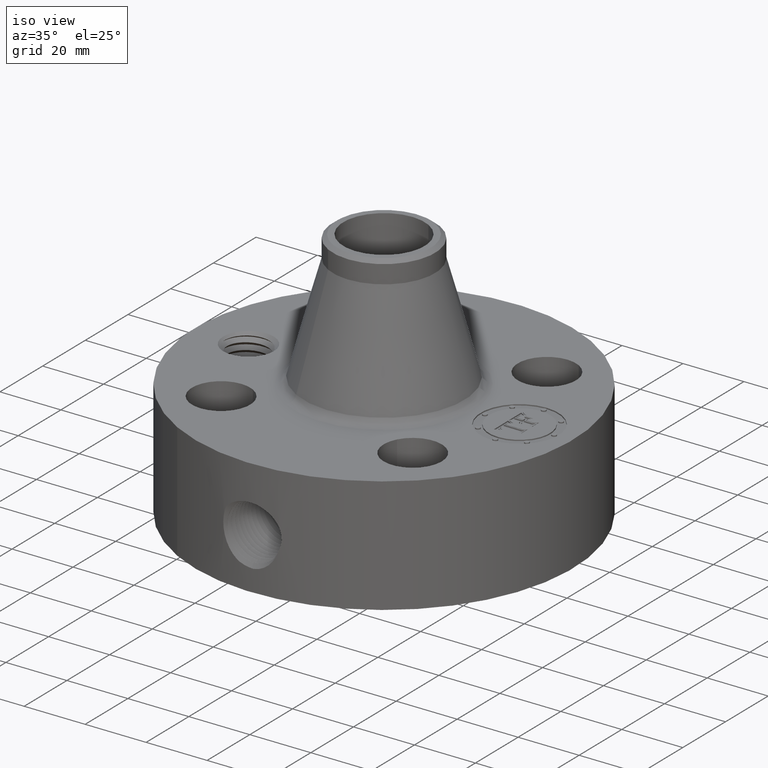
[diagram: clean part render]
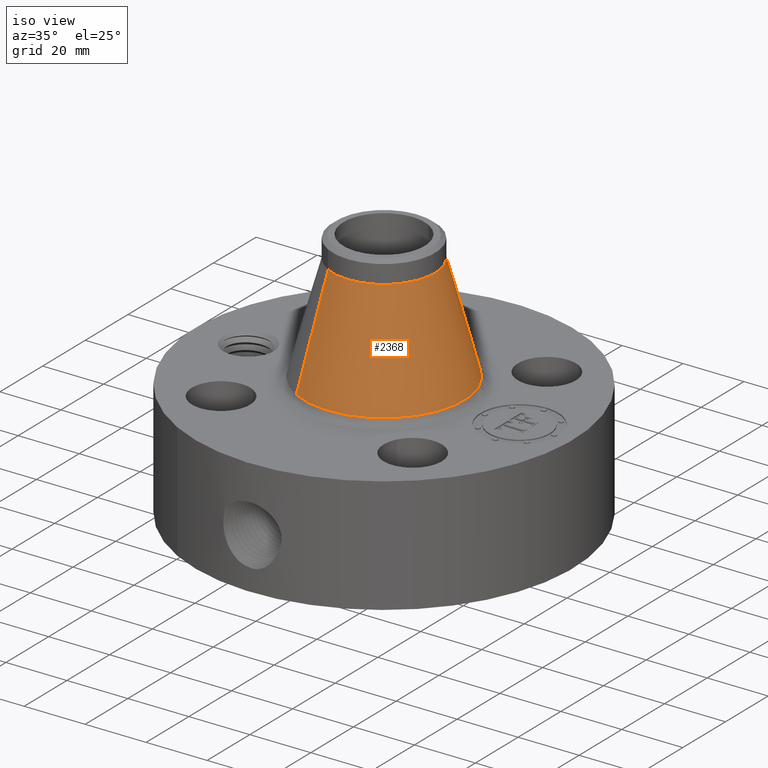
[diagram: same view with one face highlighted and labeled with its STEP entity id]
A machine part, iso view. The second image highlights one B-rep face of the part: STEP entity #2368.
In plain terms, the highlighted conical surface has half-angle 15.22 deg.
Its self-contained STEP definition (entity closure, byte-faithful):
#1765=AXIS2_PLACEMENT_3D('Circle Axis2P3D',#1763,#1764,$) ;
#2341=AXIS2_PLACEMENT_3D('Cone Axis2P3D',#2338,#2339,#2340) ;
#2352=AXIS2_PLACEMENT_3D('Circle Axis2P3D',#2350,#2351,$) ;
#1760=CARTESIAN_POINT('Vertex',(0.496647878182,0.909107843027,1.83849707969)) ;
#1763=CARTESIAN_POINT('Axis2P3D Location',(0.,0.,1.83849707969)) ;
#1767=CARTESIAN_POINT('Vertex',(-0.496647878182,-0.909107843027,1.83849707969)) ;
#2338=CARTESIAN_POINT('Axis2P3D Location',(0.,0.,3.22022616857)) ;
#2343=CARTESIAN_POINT('Line Origine',(0.406534366831,0.744156166938,2.52936162413)) ;
#2347=CARTESIAN_POINT('Vertex',(0.31642085548,0.57920449085,3.22022616857)) ;
#2350=CARTESIAN_POINT('Axis2P3D Location',(0.,0.,3.22022616857)) ;
#2354=CARTESIAN_POINT('Vertex',(-0.31642085548,-0.57920449085,3.22022616857)) ;
#2357=CARTESIAN_POINT('Line Origine',(-0.406534366831,-0.744156166938,2.52936162413)) ;
#1764=DIRECTION('Axis2P3D Direction',(0.,0.,-0.0393700787402)) ;
#2339=DIRECTION('Axis2P3D Direction',(0.,0.,-0.0393700787402)) ;
#2340=DIRECTION('Axis2P3D XDirection',(-0.0188750212049,-0.0345504945626,0.)) ;
#2344=DIRECTION('Vector Direction',(0.00495515240905,0.00907034564397,-0.0379891878632)) ;
#2351=DIRECTION('Axis2P3D Direction',(0.,0.,-0.0393700787402)) ;
#2358=DIRECTION('Vector Direction',(-0.00495515240905,-0.00907034564397,-0.0379891878632)) ;
#2345=VECTOR('Line Direction',#2344,0.0393700787402) ;
#2359=VECTOR('Line Direction',#2358,0.0393700787402) ;
#2363=ORIENTED_EDGE('',*,*,#1769,.F.) ;
#2364=ORIENTED_EDGE('',*,*,#2349,.T.) ;
#2365=ORIENTED_EDGE('',*,*,#2356,.T.) ;
#2366=ORIENTED_EDGE('',*,*,#2361,.F.) ;
#2368=ADVANCED_FACE('PartBody',(#2367),#2342,.T.) ;
#1766=CIRCLE('generated circle',#1765,1.03592286641) ;
#2353=CIRCLE('generated circle',#2352,0.660000000003) ;
#2342=CONICAL_SURFACE('Cone',#2341,0.660000000003,0.2656373701) ;
#1769=EDGE_CURVE('',#1761,#1768,#1766,.T.) ;
#2349=EDGE_CURVE('',#1761,#2348,#2346,.F.) ;
#2356=EDGE_CURVE('',#2348,#2355,#2353,.T.) ;
#2361=EDGE_CURVE('',#1768,#2355,#2360,.F.) ;
#2362=EDGE_LOOP('',(#2363,#2364,#2365,#2366)) ;
#2367=FACE_OUTER_BOUND('',#2362,.T.) ;
#2346=LINE('Line',#2343,#2345) ;
#2360=LINE('Line',#2357,#2359) ;
#1761=VERTEX_POINT('',#1760) ;
#1768=VERTEX_POINT('',#1767) ;
#2348=VERTEX_POINT('',#2347) ;
#2355=VERTEX_POINT('',#2354) ;